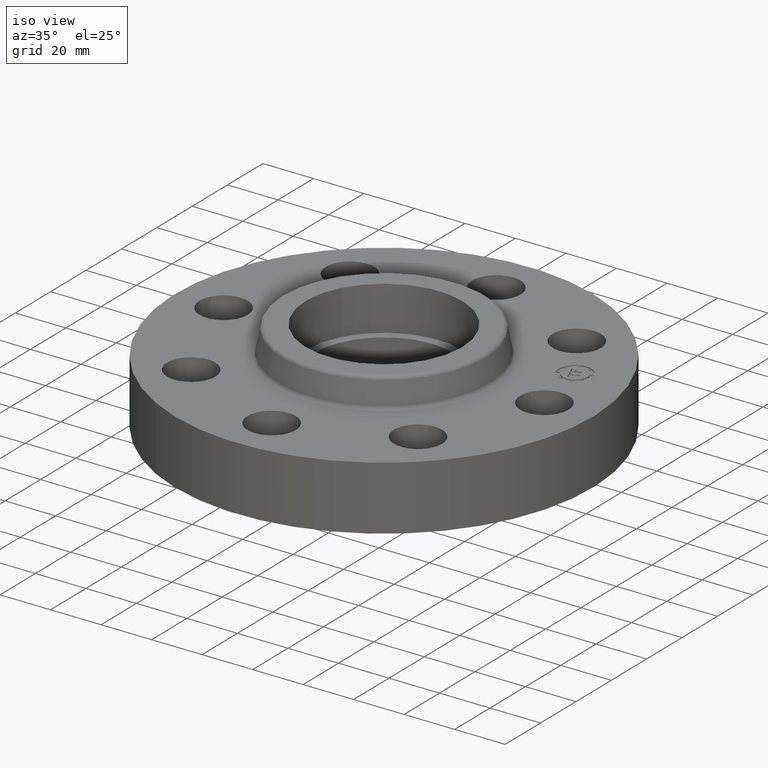
[diagram: clean part render]
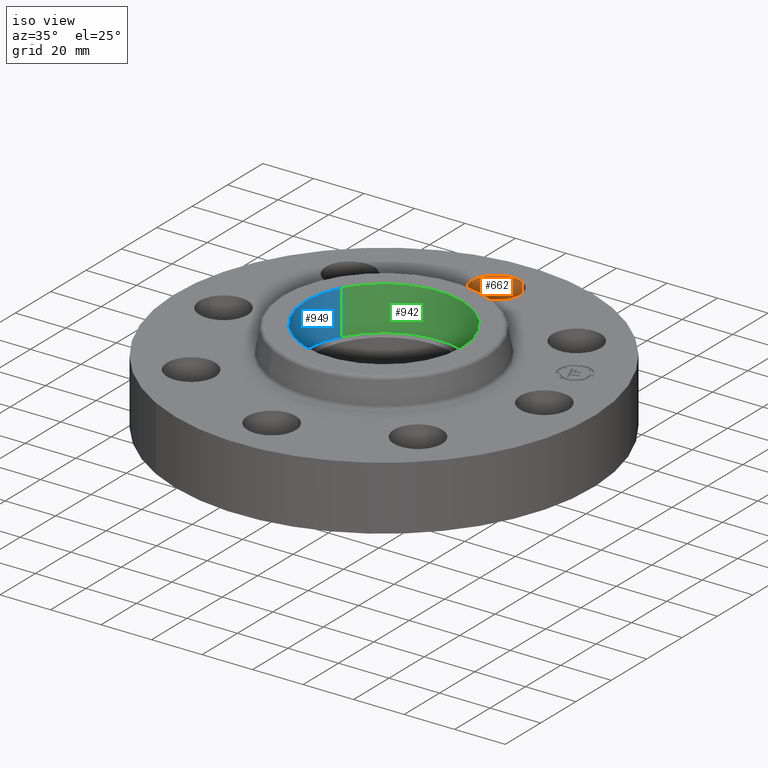
[diagram: same view with three faces highlighted in distinct colors, each labeled with its STEP entity id]
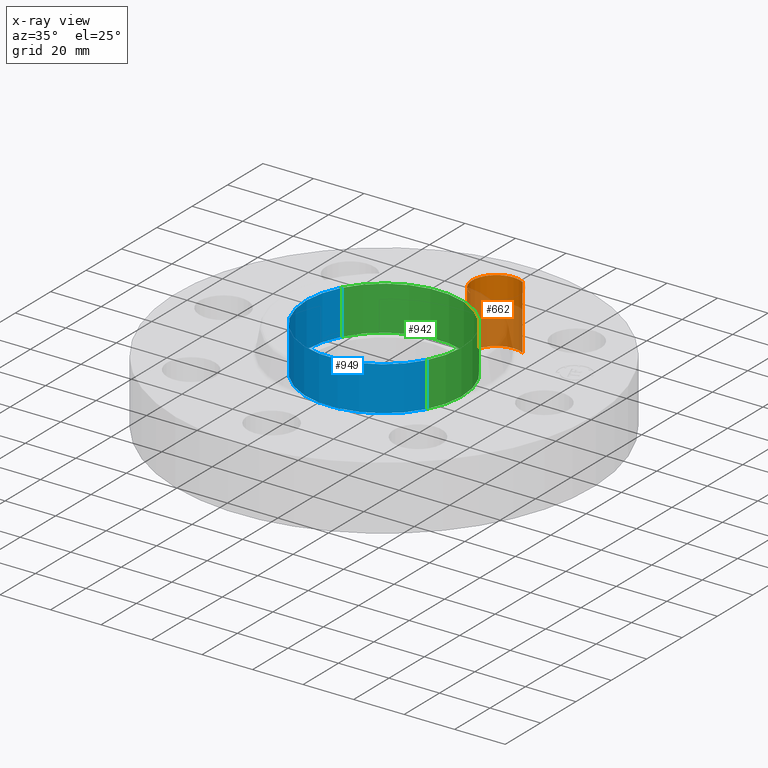
[diagram: x-ray of the same camera — body ghosted, the three highlighted faces saturated]
A machine part, iso view with three faces highlighted in distinct colors.
The next image is the same camera in x-ray (body ghosted, the three faces saturated) — at least one of them is partly hidden behind the body in this view.
Their STEP definitions:

[orange] entity #662 — the highlighted cylindrical surface (edge-blend (fillet) strip) has radius 9.525 mm, axis along (0, 0, -1).
#328=AXIS2_PLACEMENT_3D('Circle Axis2P3D',#326,#327,$) ;
#623=AXIS2_PLACEMENT_3D('Cylinder Axis2P3D',#620,#621,#622) ;
#653=AXIS2_PLACEMENT_3D('Circle Axis2P3D',#651,#652,$) ;
#326=CARTESIAN_POINT('Axis2P3D Location',(-6.99353086378E-016,2.50000000001,0.)) ;
#330=CARTESIAN_POINT('Vertex',(-0.179784576977,2.1709065393,0.)) ;
#332=CARTESIAN_POINT('Vertex',(0.179784576977,2.82909346072,0.)) ;
#620=CARTESIAN_POINT('Axis2P3D Location',(-4.59242549682E-016,2.50000000001,0.99606299213)) ;
#625=CARTESIAN_POINT('Line Origine',(0.179784576977,2.82909346072,0.500000000002)) ;
#629=CARTESIAN_POINT('Vertex',(0.179784576977,2.82909346072,1.)) ;
#632=CARTESIAN_POINT('Line Origine',(-0.179784576977,2.1709065393,0.500000000002)) ;
#636=CARTESIAN_POINT('Vertex',(-0.179784576977,2.1709065393,1.)) ;
#651=CARTESIAN_POINT('Axis2P3D Location',(-4.59242549682E-016,2.50000000001,1.)) ;
#327=DIRECTION('Axis2P3D Direction',(0.,0.,-0.0393700787402)) ;
#621=DIRECTION('Axis2P3D Direction',(0.,0.,-0.0393700787402)) ;
#622=DIRECTION('Axis2P3D XDirection',(-0.0188750212049,-0.0345504945626,-0.)) ;
#626=DIRECTION('Vector Direction',(0.,0.,-0.0393700787402)) ;
#633=DIRECTION('Vector Direction',(0.,0.,-0.0393700787402)) ;
#652=DIRECTION('Axis2P3D Direction',(0.,0.,-0.0393700787402)) ;
#627=VECTOR('Line Direction',#626,0.0393700787402) ;
#634=VECTOR('Line Direction',#633,0.0393700787402) ;
#657=ORIENTED_EDGE('',*,*,#638,.F.) ;
#658=ORIENTED_EDGE('',*,*,#334,.T.) ;
#659=ORIENTED_EDGE('',*,*,#631,.T.) ;
#660=ORIENTED_EDGE('',*,*,#655,.F.) ;
#662=ADVANCED_FACE('PartBody',(#661),#624,.F.) ;
#329=CIRCLE('generated circle',#328,0.375000000002) ;
#654=CIRCLE('generated circle',#653,0.375000000002) ;
#624=CYLINDRICAL_SURFACE('generated cylinder',#623,0.375000000002) ;
#334=EDGE_CURVE('',#331,#333,#329,.T.) ;
#631=EDGE_CURVE('',#333,#630,#628,.F.) ;
#638=EDGE_CURVE('',#331,#637,#635,.F.) ;
#655=EDGE_CURVE('',#637,#630,#654,.T.) ;
#656=EDGE_LOOP('',(#657,#658,#659,#660)) ;
#661=FACE_OUTER_BOUND('',#656,.T.) ;
#628=LINE('Line',#625,#627) ;
#635=LINE('Line',#632,#634) ;
#331=VERTEX_POINT('',#330) ;
#333=VERTEX_POINT('',#332) ;
#630=VERTEX_POINT('',#629) ;
#637=VERTEX_POINT('',#636) ;

[blue] entity #949 — the highlighted cylindrical surface (partial cylindrical patch) has radius 30.988 mm, axis along (0, 0, -1).
#51=AXIS2_PLACEMENT_3D('Circle Axis2P3D',#49,#50,$) ;
#569=AXIS2_PLACEMENT_3D('Circle Axis2P3D',#567,#568,$) ;
#924=AXIS2_PLACEMENT_3D('Cylinder Axis2P3D',#921,#922,#923) ;
#44=CARTESIAN_POINT('Vertex',(-1.07065072551,0.584899157099,0.750000000003)) ;
#46=CARTESIAN_POINT('Vertex',(1.07065072551,-0.584899157099,0.750000000003)) ;
#49=CARTESIAN_POINT('Axis2P3D Location',(1.39870617276E-016,3.84644197508E-016,0.750000000003)) ;
#562=CARTESIAN_POINT('Vertex',(-1.07065072551,0.584899157099,1.44000000001)) ;
#564=CARTESIAN_POINT('Vertex',(1.07065072551,-0.584899157099,1.44000000001)) ;
#567=CARTESIAN_POINT('Axis2P3D Location',(1.74838271595E-016,8.39223703654E-016,1.44000000001)) ;
#921=CARTESIAN_POINT('Axis2P3D Location',(1.39870617276E-016,3.84644197508E-016,1.43606299213)) ;
#926=CARTESIAN_POINT('Line Origine',(-1.07065072551,0.584899157099,1.095)) ;
#931=CARTESIAN_POINT('Line Origine',(1.07065072551,-0.584899157099,1.095)) ;
#50=DIRECTION('Axis2P3D Direction',(0.,0.,-0.0393700787402)) ;
#568=DIRECTION('Axis2P3D Direction',(0.,0.,-0.0393700787402)) ;
#922=DIRECTION('Axis2P3D Direction',(0.,0.,-0.0393700787402)) ;
#923=DIRECTION('Axis2P3D XDirection',(0.0345504945626,-0.0188750212049,0.)) ;
#927=DIRECTION('Vector Direction',(0.,0.,-0.0393700787402)) ;
#932=DIRECTION('Vector Direction',(0.,0.,-0.0393700787402)) ;
#928=VECTOR('Line Direction',#927,0.0393700787402) ;
#933=VECTOR('Line Direction',#932,0.0393700787402) ;
#944=ORIENTED_EDGE('',*,*,#571,.F.) ;
#945=ORIENTED_EDGE('',*,*,#935,.F.) ;
#946=ORIENTED_EDGE('',*,*,#53,.T.) ;
#947=ORIENTED_EDGE('',*,*,#930,.T.) ;
#949=ADVANCED_FACE('PartBody',(#948),#925,.F.) ;
#52=CIRCLE('generated circle',#51,1.22) ;
#570=CIRCLE('generated circle',#569,1.22) ;
#925=CYLINDRICAL_SURFACE('generated cylinder',#924,1.22) ;
#53=EDGE_CURVE('',#47,#45,#52,.T.) ;
#571=EDGE_CURVE('',#565,#563,#570,.T.) ;
#930=EDGE_CURVE('',#45,#563,#929,.F.) ;
#935=EDGE_CURVE('',#47,#565,#934,.F.) ;
#943=EDGE_LOOP('',(#944,#945,#946,#947)) ;
#948=FACE_OUTER_BOUND('',#943,.T.) ;
#929=LINE('Line',#926,#928) ;
#934=LINE('Line',#931,#933) ;
#45=VERTEX_POINT('',#44) ;
#47=VERTEX_POINT('',#46) ;
#563=VERTEX_POINT('',#562) ;
#565=VERTEX_POINT('',#564) ;

[green] entity #942 — the highlighted cylindrical surface (partial cylindrical patch) has radius 30.988 mm, axis along (0, 0, -1).
#42=AXIS2_PLACEMENT_3D('Circle Axis2P3D',#40,#41,$) ;
#560=AXIS2_PLACEMENT_3D('Circle Axis2P3D',#558,#559,$) ;
#924=AXIS2_PLACEMENT_3D('Cylinder Axis2P3D',#921,#922,#923) ;
#40=CARTESIAN_POINT('Axis2P3D Location',(1.39870617276E-016,3.84644197508E-016,0.750000000003)) ;
#44=CARTESIAN_POINT('Vertex',(-1.07065072551,0.584899157099,0.750000000003)) ;
#46=CARTESIAN_POINT('Vertex',(1.07065072551,-0.584899157099,0.750000000003)) ;
#558=CARTESIAN_POINT('Axis2P3D Location',(2.09805925913E-016,2.79741234551E-016,1.44000000001)) ;
#562=CARTESIAN_POINT('Vertex',(-1.07065072551,0.584899157099,1.44000000001)) ;
#564=CARTESIAN_POINT('Vertex',(1.07065072551,-0.584899157099,1.44000000001)) ;
#921=CARTESIAN_POINT('Axis2P3D Location',(1.39870617276E-016,3.84644197508E-016,1.43606299213)) ;
#926=CARTESIAN_POINT('Line Origine',(-1.07065072551,0.584899157099,1.095)) ;
#931=CARTESIAN_POINT('Line Origine',(1.07065072551,-0.584899157099,1.095)) ;
#41=DIRECTION('Axis2P3D Direction',(0.,0.,-0.0393700787402)) ;
#559=DIRECTION('Axis2P3D Direction',(0.,0.,-0.0393700787402)) ;
#922=DIRECTION('Axis2P3D Direction',(0.,0.,-0.0393700787402)) ;
#923=DIRECTION('Axis2P3D XDirection',(0.0345504945626,-0.0188750212049,0.)) ;
#927=DIRECTION('Vector Direction',(0.,0.,-0.0393700787402)) ;
#932=DIRECTION('Vector Direction',(0.,0.,-0.0393700787402)) ;
#928=VECTOR('Line Direction',#927,0.0393700787402) ;
#933=VECTOR('Line Direction',#932,0.0393700787402) ;
#937=ORIENTED_EDGE('',*,*,#566,.F.) ;
#938=ORIENTED_EDGE('',*,*,#930,.F.) ;
#939=ORIENTED_EDGE('',*,*,#48,.T.) ;
#940=ORIENTED_EDGE('',*,*,#935,.T.) ;
#942=ADVANCED_FACE('PartBody',(#941),#925,.F.) ;
#43=CIRCLE('generated circle',#42,1.22) ;
#561=CIRCLE('generated circle',#560,1.22) ;
#925=CYLINDRICAL_SURFACE('generated cylinder',#924,1.22) ;
#48=EDGE_CURVE('',#45,#47,#43,.T.) ;
#566=EDGE_CURVE('',#563,#565,#561,.T.) ;
#930=EDGE_CURVE('',#45,#563,#929,.F.) ;
#935=EDGE_CURVE('',#47,#565,#934,.F.) ;
#936=EDGE_LOOP('',(#937,#938,#939,#940)) ;
#941=FACE_OUTER_BOUND('',#936,.T.) ;
#929=LINE('Line',#926,#928) ;
#934=LINE('Line',#931,#933) ;
#45=VERTEX_POINT('',#44) ;
#47=VERTEX_POINT('',#46) ;
#563=VERTEX_POINT('',#562) ;
#565=VERTEX_POINT('',#564) ;